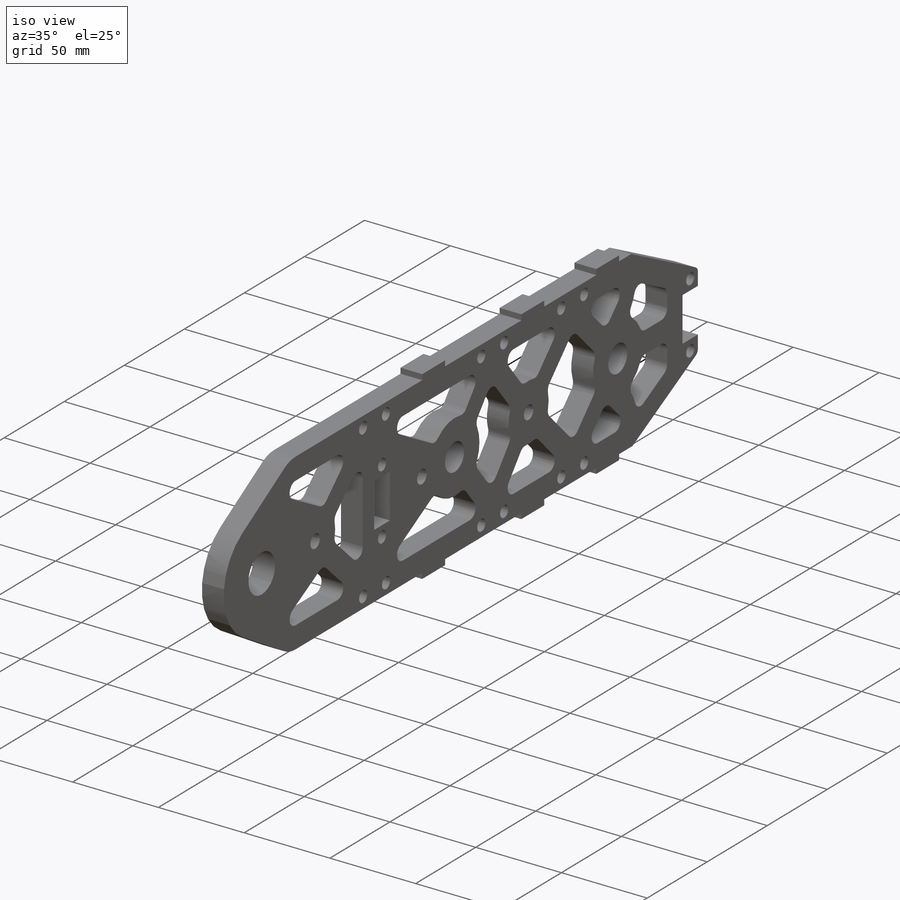
[diagram: iso view]
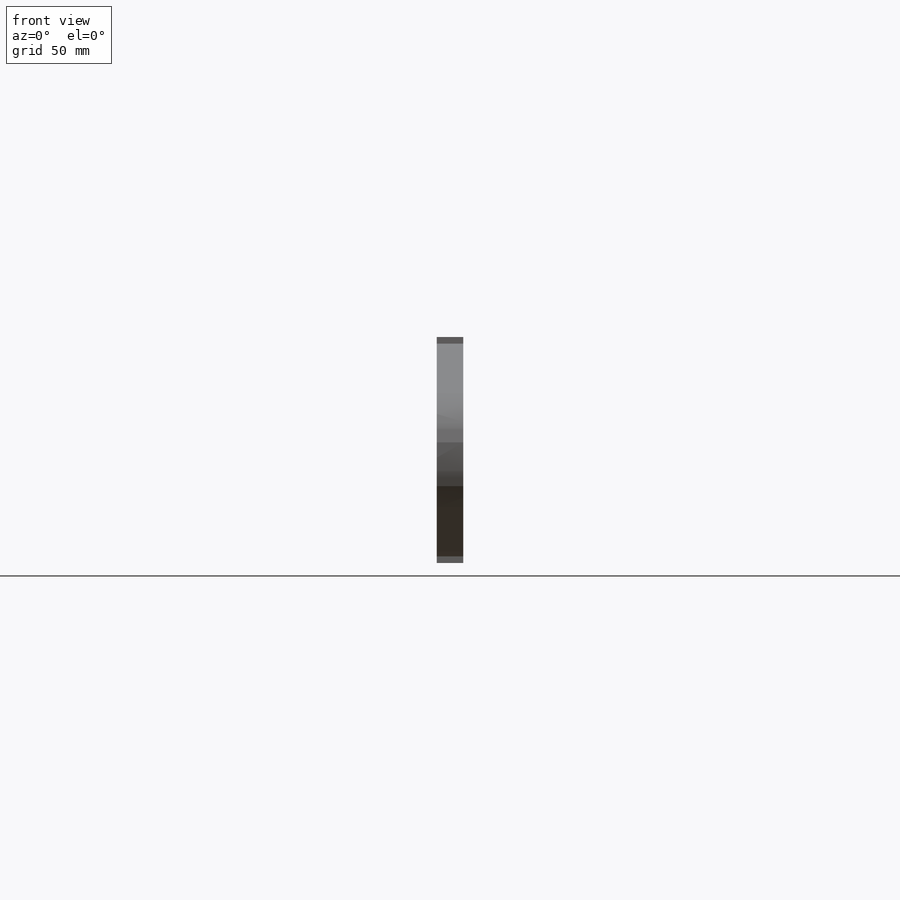
[diagram: front view]
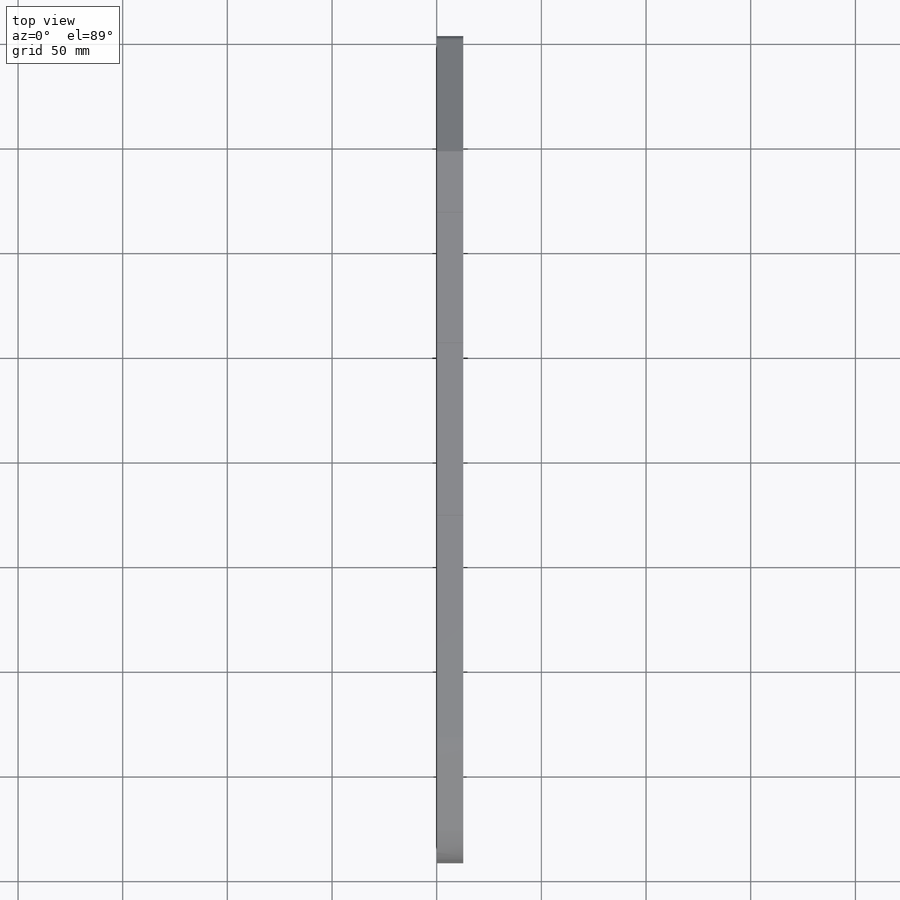
[diagram: top view]
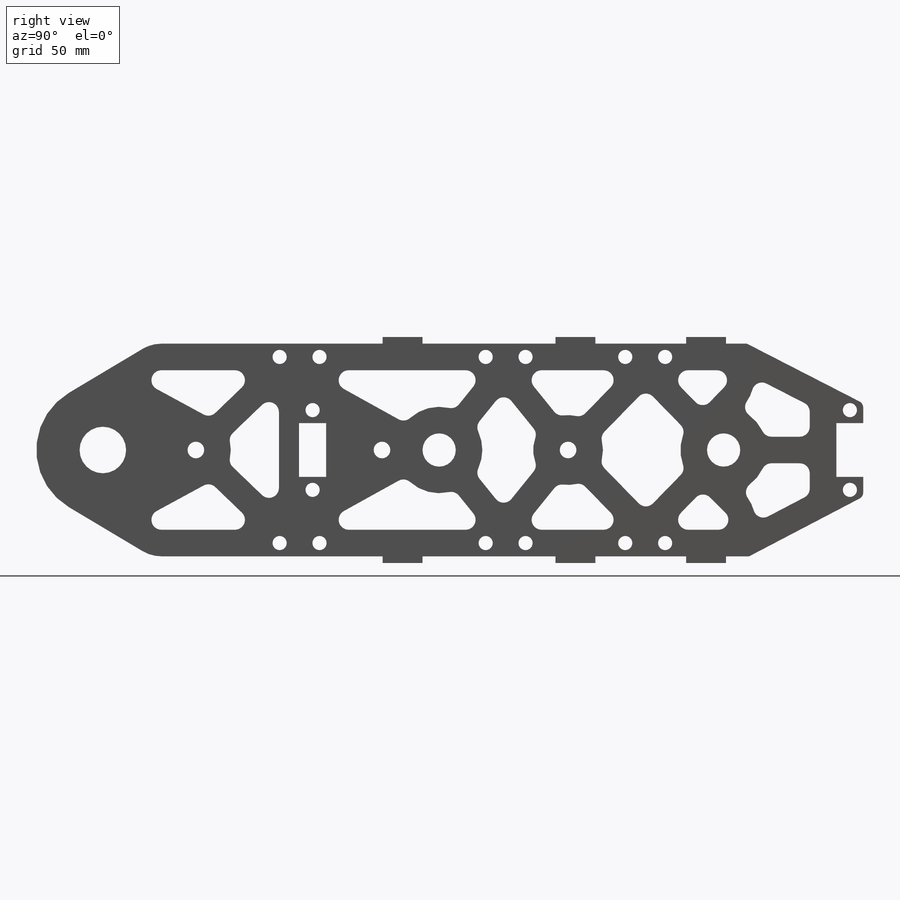
[diagram: right view]
SOLIDWORKS PART (.sldprt)
format: sldprt  version: not decoded by parser v0  size: 990,720 bytes
history: native  units: mm
features: sketch x19, cut_extrude x9, extrude x4, fillet x4, hole x3, mirror x2, material x1 (+13 scaffold rows collapsed)
feature tree (55):
  scaffold x13  (default folders/planes/origin — collapsed)
  material  "6061-T6 (SS)"
  sketch  "Sketch1"  dims[c1.D1=~9.285877mm c1.D3=~12.882042mm c1.D4=15.875mm c1.D5=101.6mm c1.D9=50.8mm c1.D10=67.31mm c1.D11=79.502mm c1.D12=46.736mm c1.D13=12.7mm c2.D1=38.1mm c2.D2=50.8mm c2.D3=71.755mm c2.D6=254.0mm c2.D7=38.1mm c2.D8=38.1mm]
  extrude  "Boss-Extrude1"  Depth=12.7mm
  sketch  "Sketch2"
  extrude  "Boss-Extrude2"  Depth=12.7mm
  sketch  "Sketch3"
  cut_extrude  "Cut-Extrude1"  [1 undecoded]
  sketch  "Sketch4"  dims[D1=25.4mm]
  cut_extrude  "Cut-Extrude2"  [1 undecoded]
  fillet  "Fillet1"  Radius=25.4mm
  mirror  "Mirror1"
  sketch  "Sketch5"
  extrude  "Boss-Extrude3"  [1 undecoded]
  sketch  "Sketch6"  dims[D1=44.45mm]
  cut_extrude  "Cut-Extrude3"  [1 undecoded]
  sketch  "Sketch7"
  cut_extrude  "Cut-Extrude4"  [1 undecoded]
  sketch  "Sketch8"
  cut_extrude  "Cut-Extrude5"  [1 undecoded]
  sketch  "Sketch10"  dims[c1.D1=~4.75064mm c1.D2=~101.663702mm c2.D1=~26.603586mm c2.D2=~17.596492mm c3.D1=~26.603586mm c3.D2=~20.586108mm c4.D1=12.827mm c4.D2=25.654mm c4.D3=60.452mm c4.D4=12.954mm]
  cut_extrude  "Cut-Extrude6"  [1 undecoded]
  hole  "1/4 Clearance Hole1"  Diameter=6.7564mm Depth=12.7mm
  sketch  "Sketch12"  dims[D1=6.35mm D2=38.1mm]
  sketch  "Sketch11"  dims[hole-wizard template sketch: 50 standard entries collapsed; hole parameters above]
  hole  "3/8-16 Tapped Hole1"  Diameter=7.9375mm Depth=23.876mm
  sketch  "Sketch15"  dims[D1=~0.811227mm D2=88.9mm D3=44.45mm]
  sketch  "Sketch14"  dims[hole-wizard template sketch: 47 standard entries collapsed; hole parameters kept: c15.Tap Drill Depth=23.876mm c15.D3=~14.816244mm c15.Drill Angle=118.0deg]
  sketch  "Sketch16"  dims[c1.D10=~55.006361mm c1.D12=~76.523457mm c1.D16=~10.287871mm c1.D1=12.7mm c1.D2=12.7mm c1.D3=12.7mm c1.D4=12.7mm c1.D5=12.7mm c1.D6=12.7mm c1.D7=12.7mm c1.D8=12.7mm c1.D9=12.7mm c2.D10=6.35mm c2.D11=6.35mm c2.D12=6.35mm c2.D13=6.35mm c2.D14=6.35mm c2.D15=6.35mm]
  cut_extrude  "Cut-Extrude7"  [1 undecoded]
  fillet  "Fillet2"  Radius=4.7625mm
  sketch  "Sketch17"  dims[D1=~36.751686mm D2=~121.425548mm]
  cut_extrude  "Cut-Extrude8"  [1 undecoded]
  fillet  "Fillet3"  Radius=3.175mm
  hole  "1/4 Clearance Hole2"  Diameter=6.7564mm Depth=12.7mm
  sketch  "Sketch19"  dims[D1=6.35mm D2=19.05mm D3=19.05mm D4=19.05mm D5=57.15mm D6=22.225mm D7=88.9mm]
  sketch  "Sketch18"  dims[hole-wizard template sketch: 61 standard entries collapsed; hole parameters above]
  sketch  "Sketch20"  dims[c1.D1=~2.041566mm c1.D2=~0.643778mm c2.D1=~3.108654mm c2.D2=~30.579435mm c3.D1=~3.108654mm c3.D2=~20.600883mm c4.D1=~3.108654mm c4.D2=~19.957105mm c5.D1=19.05mm c5.D2=3.175mm]
  extrude  "Boss-Extrude4"  [1 undecoded]
  mirror  "Mirror3"
  sketch  "Sketch21"  dims[c1.D1=41.275mm c1.D4=~25.937687mm c2.D1=12.7mm c2.D2=12.7mm c2.D3=12.7mm c2.D4=6.35mm c2.D5=6.35mm]
  cut_extrude  "Cut-Extrude9"  [1 undecoded]
  fillet  "Fillet4"  Radius=4.7625mm
decode coverage: 23 of 41 modeling features carry decoded parameters
note: ~ marks probable driven/reference dimensions
note: 11 parameter values undecoded
summary: no parameter record found for 11 features
note: suppression state not decoded; provenance and decode notes live in map.json
